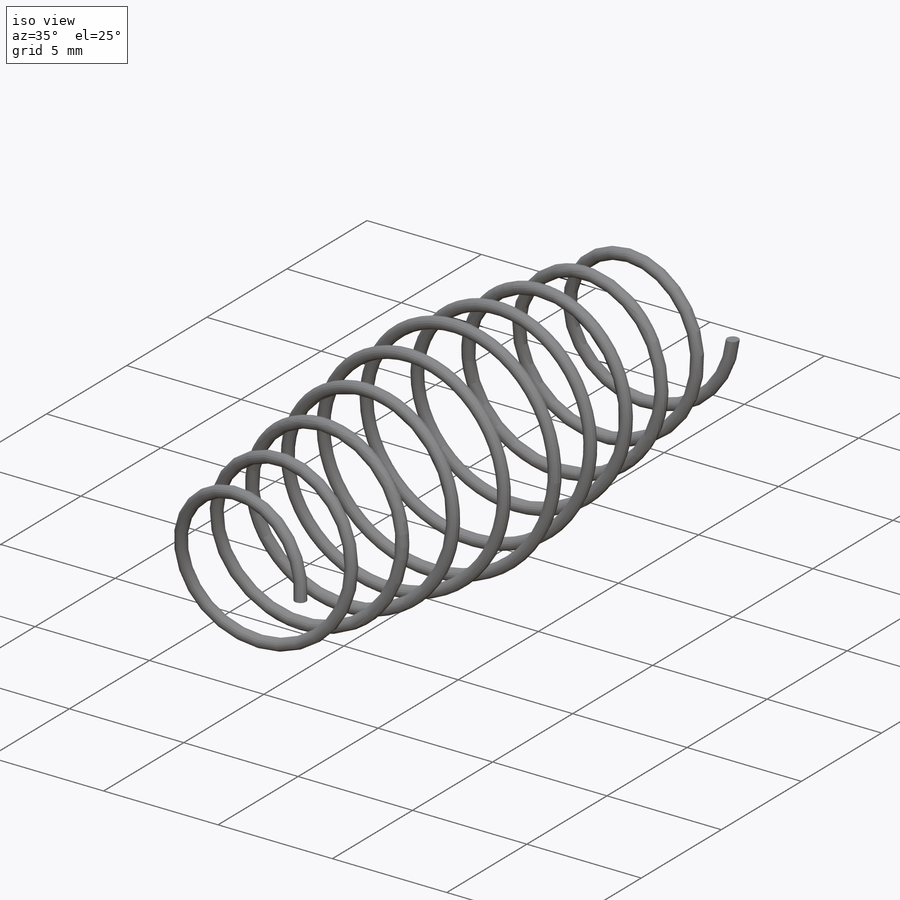
[diagram: iso view]
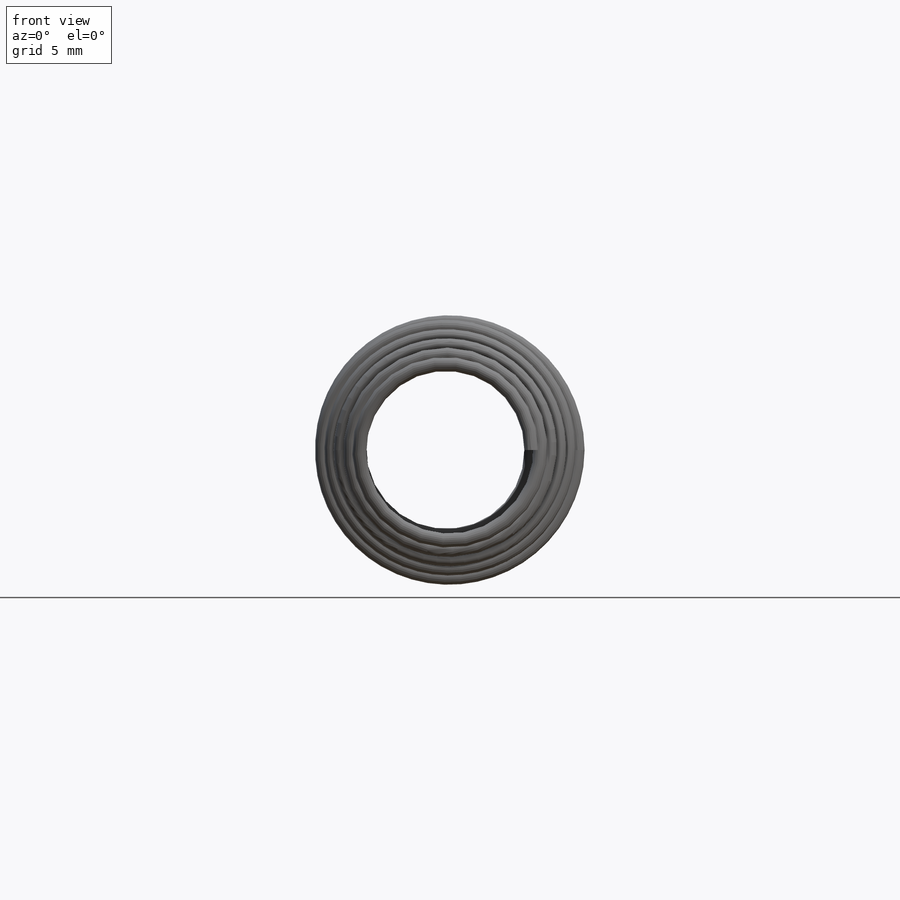
[diagram: front view]
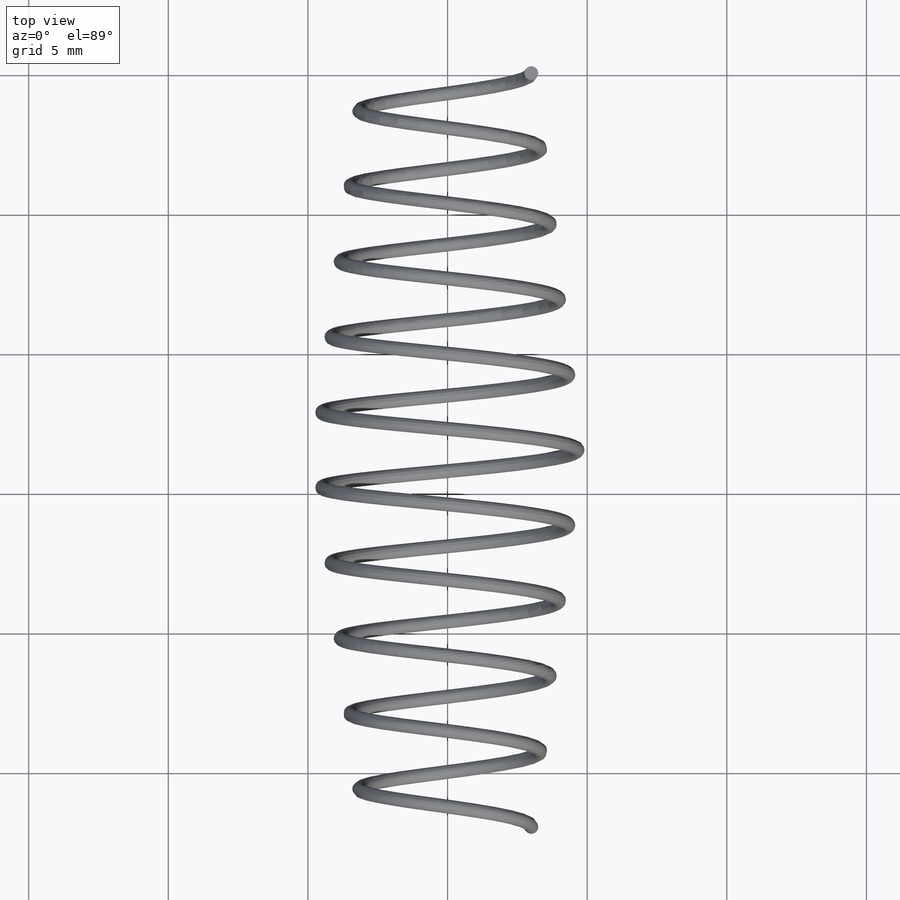
[diagram: top view]
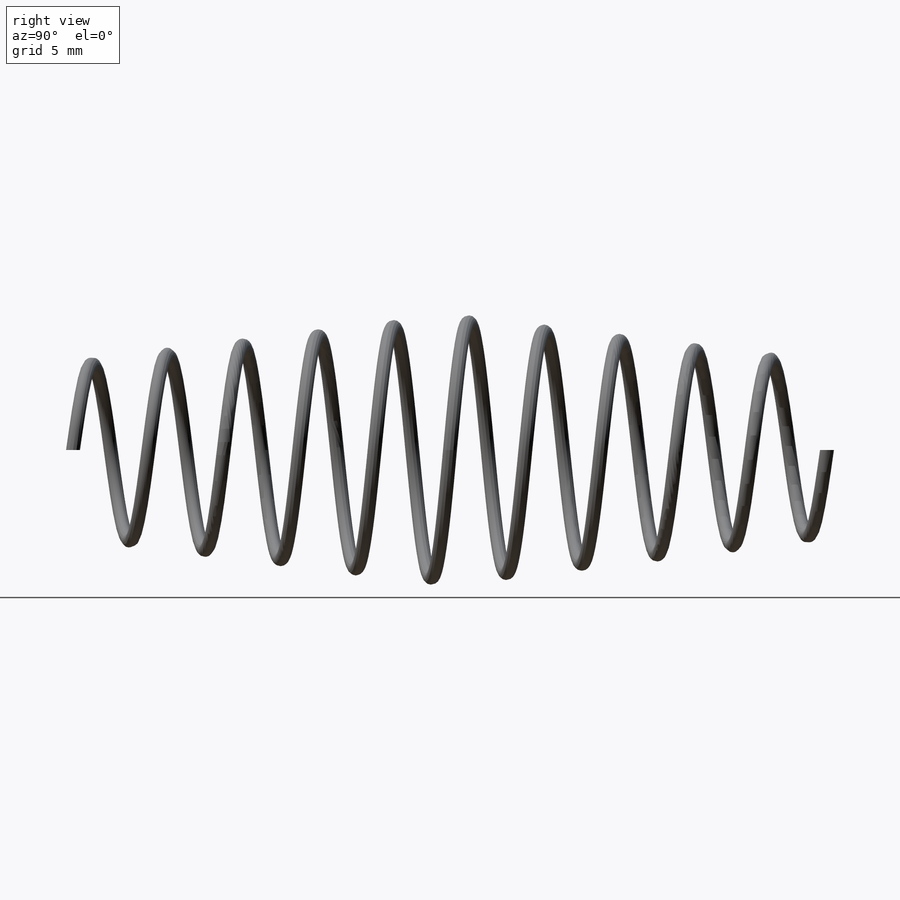
[diagram: right view]
SOLIDWORKS PART (.sldprt)
format: sldprt  version: not decoded by parser v0  size: 397,312 bytes
history: native  units: mm
features: plane x4, sketch x4, sweep x2, material x1, helix x1 (+10 scaffold rows collapsed)
feature tree (22):
  scaffold x10  (default folders/planes/origin — collapsed)
  material  "Matériau <non spécifié>"
  plane  "Face"
  plane  "Dessus"
  plane  "Droite"
  sketch  "Esquisse1"  dims[D1=6.0mm]
  helix  "Hélice/Spirale1"  Pitch=13.5mm
  sketch  "Esquisse2"  dims[D1=0.5mm D2=3.0mm]
  sweep  "Balayage1"
  plane  "Plan1"  Offset=27mm
  sketch  "Esquisse3"  dims[D1=6.0mm Hélice/Spirale2=0.0 D3=13.5mm D4=2.7mm D5=5000.0mm D6=7.0deg D7=0.0deg]
  sketch  "Esquisse4"  dims[D2=0.5mm D1=6.0mm D3=13.5mm]
  sweep  "Balayage2"
decode coverage: 5 of 7 modeling features carry decoded parameters
note: suppression state not decoded; provenance and decode notes live in map.json
